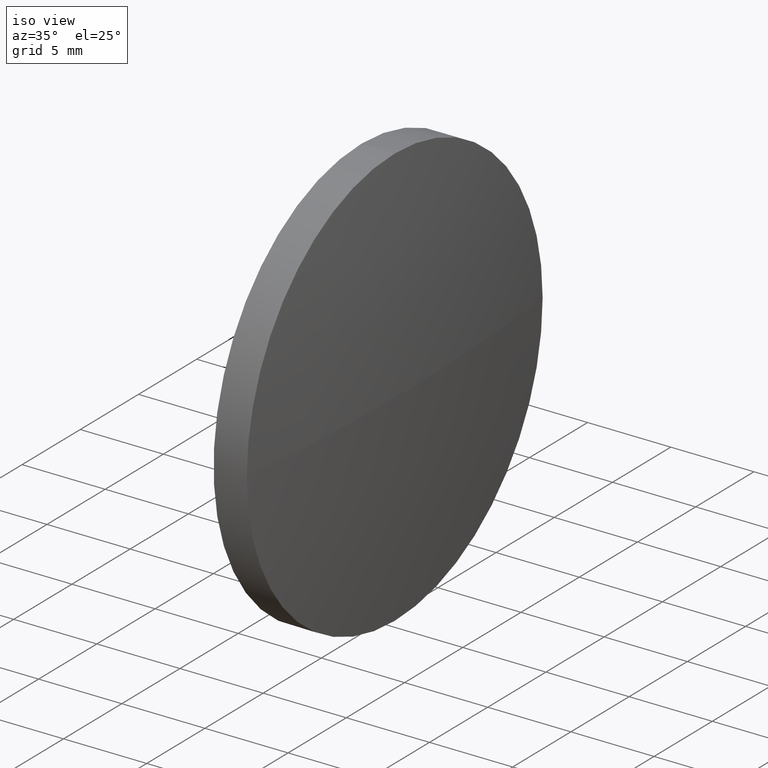
[diagram: clean part render]
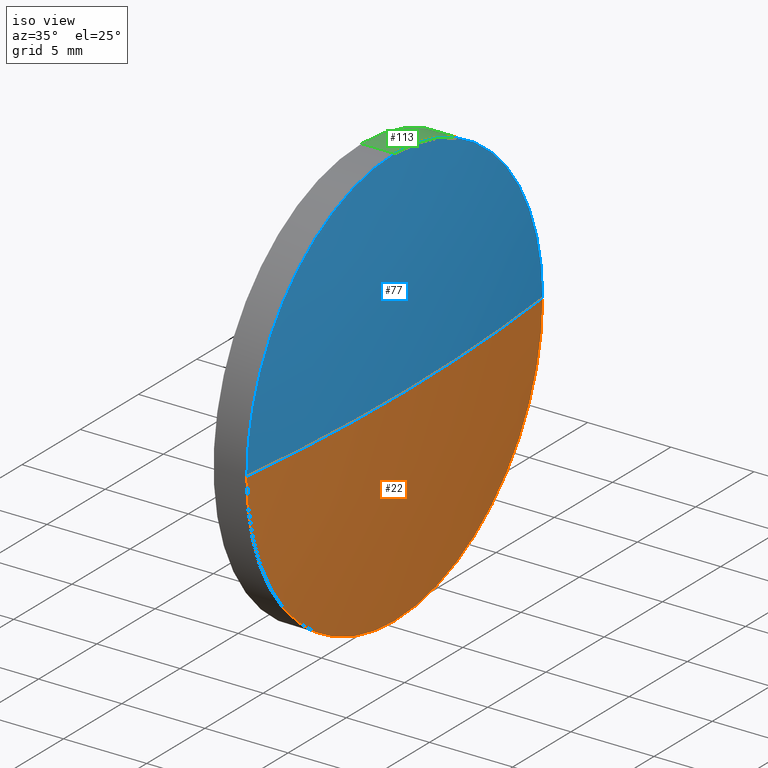
[diagram: same view with three faces highlighted in distinct colors, each labeled with its STEP entity id]
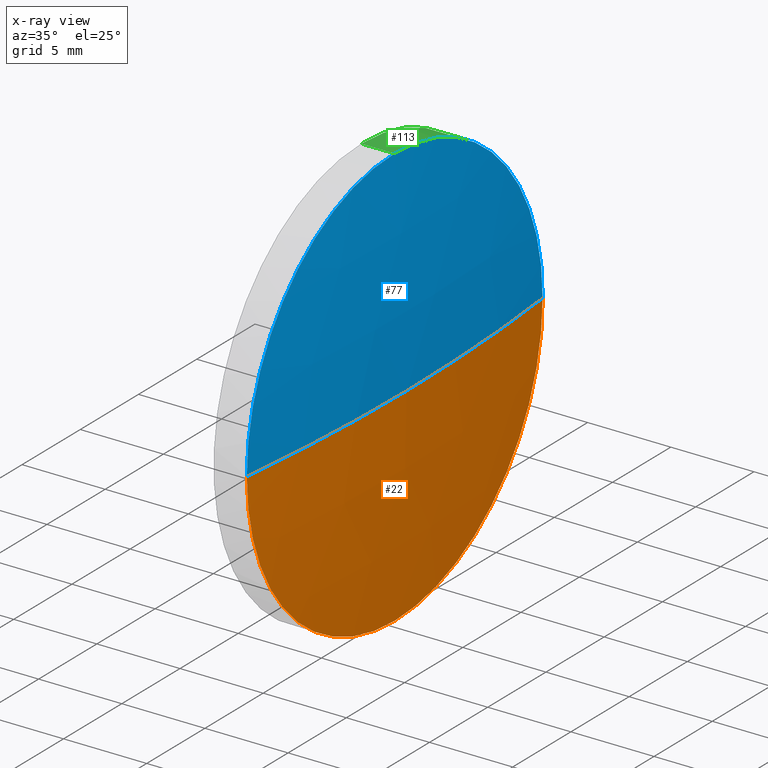
[diagram: x-ray of the same camera — body ghosted, the three highlighted faces saturated]
A machine part, iso view with three faces highlighted in distinct colors.
The next image is the same camera in x-ray (body ghosted, the three faces saturated) — at least one of them is partly hidden behind the body in this view.
Their STEP definitions:

[orange] entity #22 — the highlighted spherical surface has radius 113.939 mm.
#10 = EDGE_LOOP ( 'NONE', ( #125, #164, #52, #148 ) ) ;
#12 = VERTEX_POINT ( 'NONE', #115 ) ;
#22 = ADVANCED_FACE ( 'NONE', ( #92 ), #147, .T. ) ;
#30 = VERTEX_POINT ( 'NONE', #83 ) ;
#32 = DIRECTION ( 'NONE',  ( -0.0000000000000000000, 0.0000000000000000000, 1.000000000000000000 ) ) ;
#33 = AXIS2_PLACEMENT_3D ( 'NONE', #85, #138, #155 ) ;
#36 = CIRCLE ( 'NONE', #99, 12.70000000000000600 ) ;
#43 = CARTESIAN_POINT ( 'NONE',  ( 337.9162837088605900, 24.66332668571168800, 0.0000000000000000000 ) ) ;
#47 = DIRECTION ( 'NONE',  ( 0.0000000000000000000, 0.0000000000000000000, 1.000000000000000000 ) ) ;
#52 = ORIENTED_EDGE ( 'NONE', *, *, #80, .F. ) ;
#55 = VERTEX_POINT ( 'NONE', #69 ) ;
#65 = CIRCLE ( 'NONE', #76, 12.70000000000000600 ) ;
#69 = CARTESIAN_POINT ( 'NONE',  ( 451.1457907511151000, 11.96332668571173000, -1.555301434917133100E-015 ) ) ;
#71 = EDGE_CURVE ( 'NONE', #12, #114, #36, .T. ) ;
#74 = CARTESIAN_POINT ( 'NONE',  ( 451.1457907511151000, 24.66332668571183700, 0.0000000000000000000 ) ) ;
#76 = AXIS2_PLACEMENT_3D ( 'NONE', #74, #135, #95 ) ;
#79 = CIRCLE ( 'NONE', #158, 113.9395070422545300 ) ;
#80 = EDGE_CURVE ( 'NONE', #114, #55, #65, .T. ) ;
#83 = CARTESIAN_POINT ( 'NONE',  ( 451.8557907511150800, 24.66332668571169500, 0.0000000000000000000 ) ) ;
#85 = CARTESIAN_POINT ( 'NONE',  ( 337.9162837088605900, 24.66332668571168800, 0.0000000000000000000 ) ) ;
#86 = CARTESIAN_POINT ( 'NONE',  ( 337.9162837088605900, 24.66332668571168800, 0.0000000000000000000 ) ) ;
#92 = FACE_OUTER_BOUND ( 'NONE', #10, .T. ) ;
#95 = DIRECTION ( 'NONE',  ( 0.0000000000000000000, 0.0000000000000000000, 1.000000000000000000 ) ) ;
#99 = AXIS2_PLACEMENT_3D ( 'NONE', #153, #181, #47 ) ;
#114 = VERTEX_POINT ( 'NONE', #117 ) ;
#115 = CARTESIAN_POINT ( 'NONE',  ( 451.1457907511151000, 37.36332668571179700, 0.0000000000000000000 ) ) ;
#117 = CARTESIAN_POINT ( 'NONE',  ( 451.1457907511151000, 24.66332668571183700, -12.70000000000000600 ) ) ;
#121 = AXIS2_PLACEMENT_3D ( 'NONE', #43, #165, #178 ) ;
#122 = DIRECTION ( 'NONE',  ( 1.000000000000000000, 0.0000000000000000000, 0.0000000000000000000 ) ) ;
#125 = ORIENTED_EDGE ( 'NONE', *, *, #173, .F. ) ;
#131 = EDGE_CURVE ( 'NONE', #30, #55, #174, .T. ) ;
#135 = DIRECTION ( 'NONE',  ( -1.000000000000000000, -0.0000000000000000000, -0.0000000000000000000 ) ) ;
#138 = DIRECTION ( 'NONE',  ( 0.0000000000000000000, 1.224646799147353200E-016, -1.000000000000000000 ) ) ;
#147 = SPHERICAL_SURFACE ( 'NONE', #121, 113.9395070422545500 ) ;
#148 = ORIENTED_EDGE ( 'NONE', *, *, #71, .F. ) ;
#153 = CARTESIAN_POINT ( 'NONE',  ( 451.1457907511151000, 24.66332668571183700, 0.0000000000000000000 ) ) ;
#155 = DIRECTION ( 'NONE',  ( 0.0000000000000000000, 1.000000000000000000, 1.224646799147353500E-016 ) ) ;
#158 = AXIS2_PLACEMENT_3D ( 'NONE', #86, #32, #122 ) ;
#164 = ORIENTED_EDGE ( 'NONE', *, *, #131, .T. ) ;
#165 = DIRECTION ( 'NONE',  ( -0.0000000000000000000, 0.0000000000000000000, -1.000000000000000000 ) ) ;
#173 = EDGE_CURVE ( 'NONE', #30, #12, #79, .T. ) ;
#174 = CIRCLE ( 'NONE', #33, 113.9395070422545300 ) ;
#178 = DIRECTION ( 'NONE',  ( 0.0000000000000000000, 1.000000000000000000, 0.0000000000000000000 ) ) ;
#181 = DIRECTION ( 'NONE',  ( -1.000000000000000000, -0.0000000000000000000, -0.0000000000000000000 ) ) ;

[blue] entity #77 — the highlighted spherical surface has radius 113.939 mm.
#6 = CARTESIAN_POINT ( 'NONE',  ( 451.1457907511151000, 24.66332668571183700, 12.70000000000000600 ) ) ;
#11 = CARTESIAN_POINT ( 'NONE',  ( 337.9162837088605900, 24.66332668571168800, 0.0000000000000000000 ) ) ;
#12 = VERTEX_POINT ( 'NONE', #115 ) ;
#18 = EDGE_CURVE ( 'NONE', #54, #12, #112, .T. ) ;
#19 = FACE_OUTER_BOUND ( 'NONE', #120, .T. ) ;
#24 = DIRECTION ( 'NONE',  ( 0.0000000000000000000, 0.0000000000000000000, 1.000000000000000000 ) ) ;
#30 = VERTEX_POINT ( 'NONE', #83 ) ;
#31 = EDGE_CURVE ( 'NONE', #55, #54, #72, .T. ) ;
#32 = DIRECTION ( 'NONE',  ( -0.0000000000000000000, 0.0000000000000000000, 1.000000000000000000 ) ) ;
#33 = AXIS2_PLACEMENT_3D ( 'NONE', #85, #138, #155 ) ;
#53 = AXIS2_PLACEMENT_3D ( 'NONE', #133, #134, #57 ) ;
#54 = VERTEX_POINT ( 'NONE', #6 ) ;
#55 = VERTEX_POINT ( 'NONE', #69 ) ;
#56 = CARTESIAN_POINT ( 'NONE',  ( 451.1457907511151000, 24.66332668571183700, 0.0000000000000000000 ) ) ;
#57 = DIRECTION ( 'NONE',  ( 0.0000000000000000000, 0.0000000000000000000, 1.000000000000000000 ) ) ;
#69 = CARTESIAN_POINT ( 'NONE',  ( 451.1457907511151000, 11.96332668571173000, -1.555301434917133100E-015 ) ) ;
#72 = CIRCLE ( 'NONE', #166, 12.70000000000000600 ) ;
#77 = ADVANCED_FACE ( 'NONE', ( #19 ), #161, .T. ) ;
#78 = ORIENTED_EDGE ( 'NONE', *, *, #131, .F. ) ;
#79 = CIRCLE ( 'NONE', #158, 113.9395070422545300 ) ;
#83 = CARTESIAN_POINT ( 'NONE',  ( 451.8557907511150800, 24.66332668571169500, 0.0000000000000000000 ) ) ;
#85 = CARTESIAN_POINT ( 'NONE',  ( 337.9162837088605900, 24.66332668571168800, 0.0000000000000000000 ) ) ;
#86 = CARTESIAN_POINT ( 'NONE',  ( 337.9162837088605900, 24.66332668571168800, 0.0000000000000000000 ) ) ;
#88 = ORIENTED_EDGE ( 'NONE', *, *, #31, .F. ) ;
#93 = DIRECTION ( 'NONE',  ( -1.000000000000000000, -0.0000000000000000000, -0.0000000000000000000 ) ) ;
#94 = DIRECTION ( 'NONE',  ( -0.0000000000000000000, 0.0000000000000000000, -1.000000000000000000 ) ) ;
#100 = ORIENTED_EDGE ( 'NONE', *, *, #173, .T. ) ;
#103 = DIRECTION ( 'NONE',  ( 0.0000000000000000000, 1.000000000000000000, 0.0000000000000000000 ) ) ;
#112 = CIRCLE ( 'NONE', #53, 12.70000000000000600 ) ;
#115 = CARTESIAN_POINT ( 'NONE',  ( 451.1457907511151000, 37.36332668571179700, 0.0000000000000000000 ) ) ;
#120 = EDGE_LOOP ( 'NONE', ( #78, #100, #136, #88 ) ) ;
#122 = DIRECTION ( 'NONE',  ( 1.000000000000000000, 0.0000000000000000000, 0.0000000000000000000 ) ) ;
#131 = EDGE_CURVE ( 'NONE', #30, #55, #174, .T. ) ;
#133 = CARTESIAN_POINT ( 'NONE',  ( 451.1457907511151000, 24.66332668571183700, 0.0000000000000000000 ) ) ;
#134 = DIRECTION ( 'NONE',  ( -1.000000000000000000, -0.0000000000000000000, -0.0000000000000000000 ) ) ;
#136 = ORIENTED_EDGE ( 'NONE', *, *, #18, .F. ) ;
#138 = DIRECTION ( 'NONE',  ( 0.0000000000000000000, 1.224646799147353200E-016, -1.000000000000000000 ) ) ;
#155 = DIRECTION ( 'NONE',  ( 0.0000000000000000000, 1.000000000000000000, 1.224646799147353500E-016 ) ) ;
#158 = AXIS2_PLACEMENT_3D ( 'NONE', #86, #32, #122 ) ;
#161 = SPHERICAL_SURFACE ( 'NONE', #183, 113.9395070422545500 ) ;
#166 = AXIS2_PLACEMENT_3D ( 'NONE', #56, #93, #24 ) ;
#173 = EDGE_CURVE ( 'NONE', #30, #12, #79, .T. ) ;
#174 = CIRCLE ( 'NONE', #33, 113.9395070422545300 ) ;
#183 = AXIS2_PLACEMENT_3D ( 'NONE', #11, #94, #103 ) ;

[green] entity #113 — the highlighted cylindrical surface (partial cylindrical patch) has radius 12.7 mm, axis along (-1, -0, -0).
#3 = EDGE_LOOP ( 'NONE', ( #182, #51, #154, #82, #38 ) ) ;
#6 = CARTESIAN_POINT ( 'NONE',  ( 451.1457907511151000, 24.66332668571183700, 12.70000000000000600 ) ) ;
#12 = VERTEX_POINT ( 'NONE', #115 ) ;
#18 = EDGE_CURVE ( 'NONE', #54, #12, #112, .T. ) ;
#25 = CIRCLE ( 'NONE', #50, 12.70000000000000600 ) ;
#27 = CARTESIAN_POINT ( 'NONE',  ( 443.4411172036602700, 24.66332668571183700, 12.70000000000000600 ) ) ;
#28 = CARTESIAN_POINT ( 'NONE',  ( 443.4411172036602700, 24.66332668571183700, 0.0000000000000000000 ) ) ;
#29 = DIRECTION ( 'NONE',  ( 0.0000000000000000000, 0.0000000000000000000, 1.000000000000000000 ) ) ;
#35 = CYLINDRICAL_SURFACE ( 'NONE', #127, 12.70000000000000600 ) ;
#36 = CIRCLE ( 'NONE', #99, 12.70000000000000600 ) ;
#38 = ORIENTED_EDGE ( 'NONE', *, *, #18, .T. ) ;
#40 = EDGE_CURVE ( 'NONE', #114, #64, #66, .T. ) ;
#46 = DIRECTION ( 'NONE',  ( 0.0000000000000000000, 0.0000000000000000000, 1.000000000000000000 ) ) ;
#47 = DIRECTION ( 'NONE',  ( 0.0000000000000000000, 0.0000000000000000000, 1.000000000000000000 ) ) ;
#50 = AXIS2_PLACEMENT_3D ( 'NONE', #119, #96, #46 ) ;
#51 = ORIENTED_EDGE ( 'NONE', *, *, #40, .T. ) ;
#53 = AXIS2_PLACEMENT_3D ( 'NONE', #133, #134, #57 ) ;
#54 = VERTEX_POINT ( 'NONE', #6 ) ;
#57 = DIRECTION ( 'NONE',  ( 0.0000000000000000000, 0.0000000000000000000, 1.000000000000000000 ) ) ;
#59 = CARTESIAN_POINT ( 'NONE',  ( 449.1457907511151000, 24.66332668571183700, 12.70000000000000600 ) ) ;
#60 = DIRECTION ( 'NONE',  ( -1.000000000000000000, -0.0000000000000000000, -0.0000000000000000000 ) ) ;
#64 = VERTEX_POINT ( 'NONE', #167 ) ;
#66 = LINE ( 'NONE', #171, #176 ) ;
#71 = EDGE_CURVE ( 'NONE', #12, #114, #36, .T. ) ;
#82 = ORIENTED_EDGE ( 'NONE', *, *, #156, .F. ) ;
#84 = DIRECTION ( 'NONE',  ( -1.000000000000000000, -0.0000000000000000000, -0.0000000000000000000 ) ) ;
#89 = EDGE_CURVE ( 'NONE', #169, #64, #25, .T. ) ;
#96 = DIRECTION ( 'NONE',  ( -1.000000000000000000, -0.0000000000000000000, -0.0000000000000000000 ) ) ;
#99 = AXIS2_PLACEMENT_3D ( 'NONE', #153, #181, #47 ) ;
#112 = CIRCLE ( 'NONE', #53, 12.70000000000000600 ) ;
#113 = ADVANCED_FACE ( 'NONE', ( #146 ), #35, .T. ) ;
#114 = VERTEX_POINT ( 'NONE', #117 ) ;
#115 = CARTESIAN_POINT ( 'NONE',  ( 451.1457907511151000, 37.36332668571179700, 0.0000000000000000000 ) ) ;
#117 = CARTESIAN_POINT ( 'NONE',  ( 451.1457907511151000, 24.66332668571183700, -12.70000000000000600 ) ) ;
#119 = CARTESIAN_POINT ( 'NONE',  ( 449.1457907511151000, 24.66332668571183700, 0.0000000000000000000 ) ) ;
#126 = LINE ( 'NONE', #27, #137 ) ;
#127 = AXIS2_PLACEMENT_3D ( 'NONE', #28, #60, #29 ) ;
#133 = CARTESIAN_POINT ( 'NONE',  ( 451.1457907511151000, 24.66332668571183700, 0.0000000000000000000 ) ) ;
#134 = DIRECTION ( 'NONE',  ( -1.000000000000000000, -0.0000000000000000000, -0.0000000000000000000 ) ) ;
#137 = VECTOR ( 'NONE', #157, 1000.000000000000000 ) ;
#146 = FACE_OUTER_BOUND ( 'NONE', #3, .T. ) ;
#153 = CARTESIAN_POINT ( 'NONE',  ( 451.1457907511151000, 24.66332668571183700, 0.0000000000000000000 ) ) ;
#154 = ORIENTED_EDGE ( 'NONE', *, *, #89, .F. ) ;
#156 = EDGE_CURVE ( 'NONE', #54, #169, #126, .T. ) ;
#157 = DIRECTION ( 'NONE',  ( -1.000000000000000000, -0.0000000000000000000, -0.0000000000000000000 ) ) ;
#167 = CARTESIAN_POINT ( 'NONE',  ( 449.1457907511151000, 24.66332668571183700, -12.70000000000000600 ) ) ;
#169 = VERTEX_POINT ( 'NONE', #59 ) ;
#171 = CARTESIAN_POINT ( 'NONE',  ( 443.4411172036602700, 24.66332668571183700, -12.70000000000000600 ) ) ;
#176 = VECTOR ( 'NONE', #84, 1000.000000000000000 ) ;
#181 = DIRECTION ( 'NONE',  ( -1.000000000000000000, -0.0000000000000000000, -0.0000000000000000000 ) ) ;
#182 = ORIENTED_EDGE ( 'NONE', *, *, #71, .T. ) ;